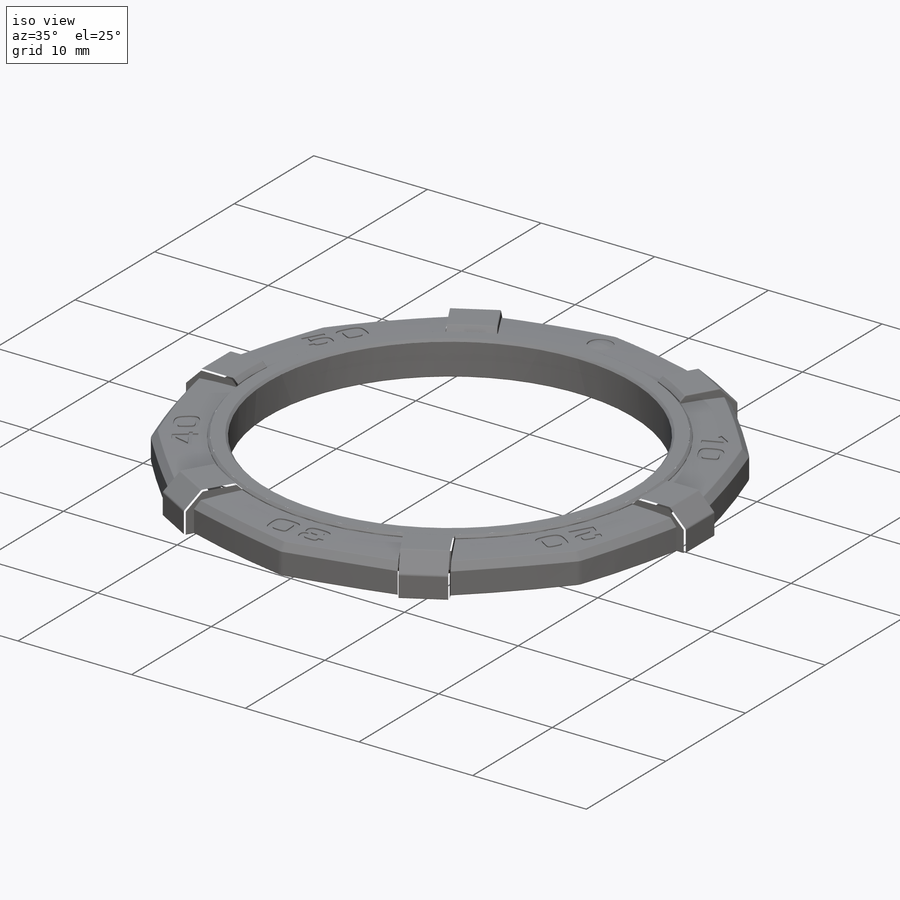
[diagram: iso view]
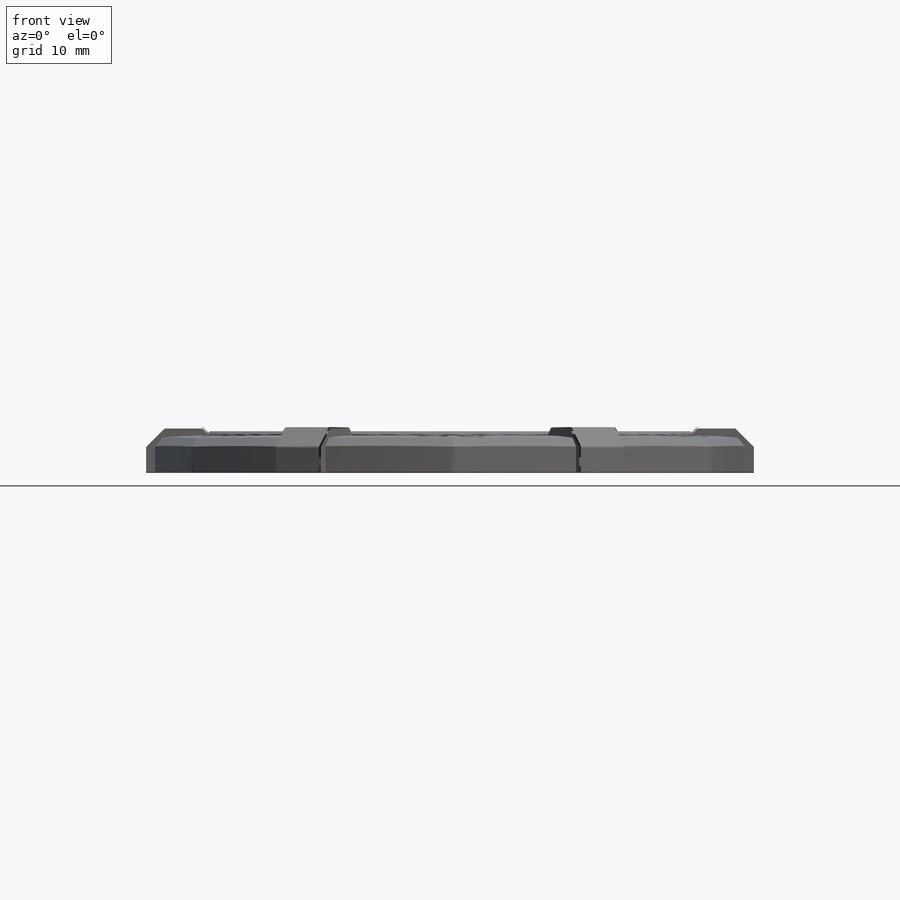
[diagram: front view]
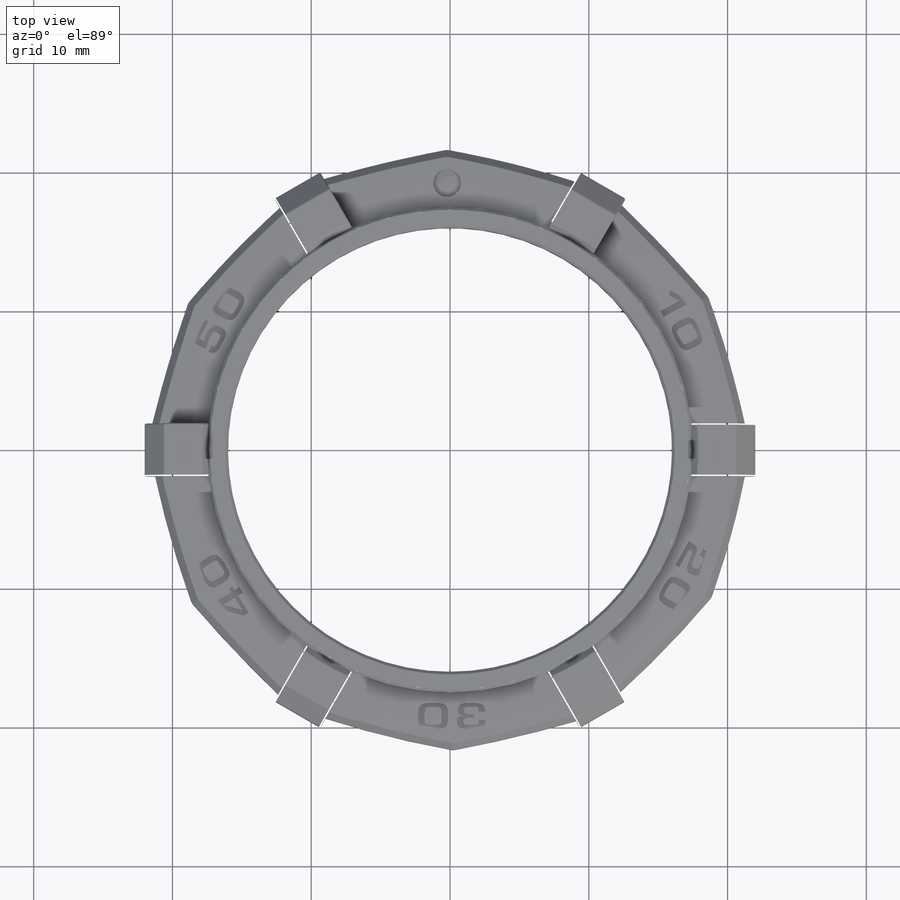
[diagram: top view]
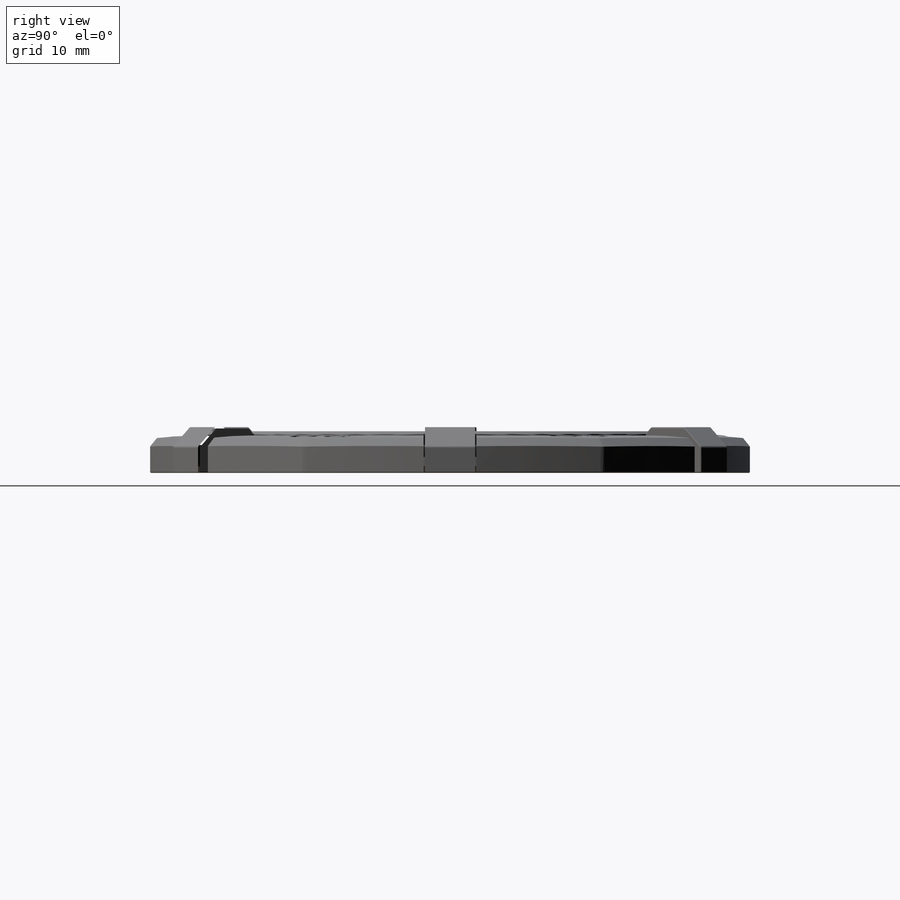
[diagram: right view]
SOLIDWORKS PART (.sldprt)
format: sldprt  version: not decoded by parser v0  size: 2,129,408 bytes
history: native  units: mm
features: sketch x18, cut_extrude x8, fillet x7, dome x7, chamfer x5, extrude x3, material x1, cut_revolve x1 (+11 scaffold rows collapsed)
feature tree (61):
  scaffold x11  (default folders/planes/origin — collapsed)
  material  "Material <not specified>"
  sketch  "Sketch1"  dims[D1=32.0mm D2=0.15mm D4=11.0mm D5=11.8mm D6=8.7mm D7=11.0mm D8=11.8mm D9=2.0mm D10=1.0mm D11=28.5mm D12=1.0mm D13=1.0mm D14=0.4mm D3=3.8mm]
  sketch  "Sketch2"
  extrude  "Boss-Extrude1"  Depth=3mm
  chamfer  "Chamfer1"  Distance=0.2mm Angle=45deg
  sketch  "Sketch3"
  extrude  "Boss-Extrude2"  Depth=2.7mm
  sketch  "Sketch5"
  sketch  "Sketch6"
  cut_revolve  "Cut-Revolve1"  Angle=360deg
  chamfer  "Chamfer3"  Distance=0.5mm Angle=45deg
  sketch  "Sketch4"
  extrude  "Boss-Extrude4"  Depth=3.3mm
  chamfer  "Chamfer5"  Distance=0.4mm Angle=45deg
  chamfer  "Chamfer6"  Distance=1.4mm Angle=45deg
  fillet  "Fillet3"  Radius=0.2mm
  sketch  "Sketch7"  dims[D1=2.0mm]
  cut_extrude  "Cut-Extrude1"  Depth=3.3mm
  dome  "Dome1"
  fillet  "Fillet5"  Radius=0.1mm
  sketch  "Sketch8"
  cut_extrude  "Cut-Extrude2"  Depth=0.1mm
  sketch  "Sketch10"
  sketch  "Sketch9"
  cut_extrude  "Cut-Extrude3"  Depth=0.1mm
  sketch  "Sketch12"
  sketch  "Sketch13"
  cut_extrude  "Cut-Extrude4"  Depth=0.1mm
  sketch  "Sketch14"
  sketch  "Sketch15"
  cut_extrude  "Cut-Extrude5"  Depth=0.1mm
  sketch  "Sketch16"
  sketch  "Sketch17"
  cut_extrude  "Cut-Extrude6"  Depth=0.1mm
  sketch  "Sketch18"  dims[D1=40.0mm D2=36.0mm]
  cut_extrude  "Cut-Extrude7"  Depth=2mm
  chamfer  "Chamfer7"  Distance=0.5mm Angle=45deg
  sketch  "Sketch19"  dims[D1=2.0mm D2=1.0mm]
  cut_extrude  "Cut-Extrude8"  Depth=1mm
  fillet  "Fillet7"  Radius=0.01mm
  fillet  "Fillet8"  Radius=0.1mm
  fillet  "Fillet9"  Radius=0.05mm
  fillet  "Fillet10"  Radius=0.1mm
  dome  "Dome3"
  dome  "Dome4"
  dome  "Dome5"
  dome  "Dome6"
  dome  "Dome7"
  dome  "Dome8"
  fillet  "Fillet4"  Radius=0.1mm
decode coverage: 28 of 49 modeling features carry decoded parameters
note: suppression state not decoded; provenance and decode notes live in map.json
